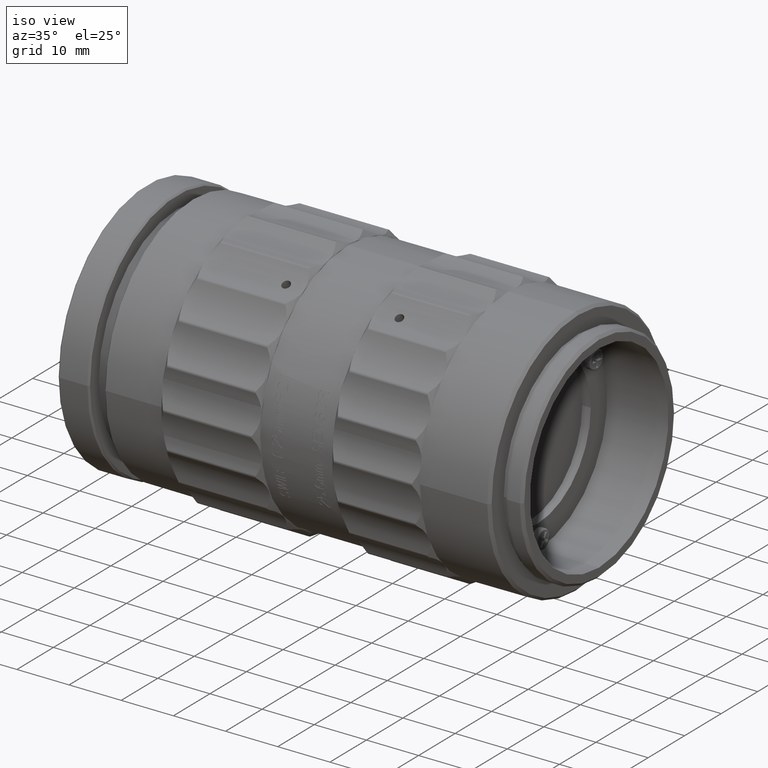
[diagram: clean part render]
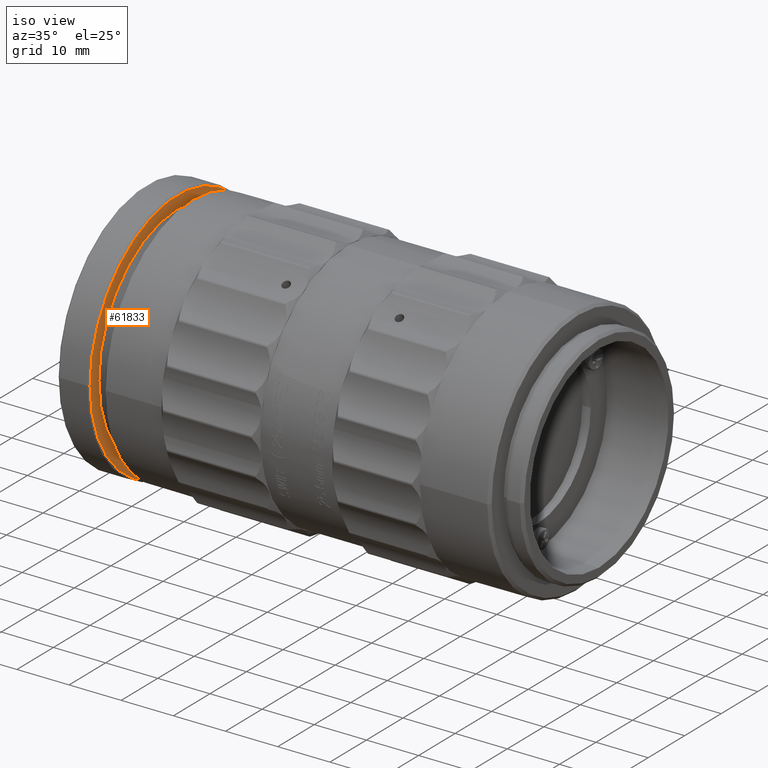
[diagram: same view with one face highlighted and labeled with its STEP entity id]
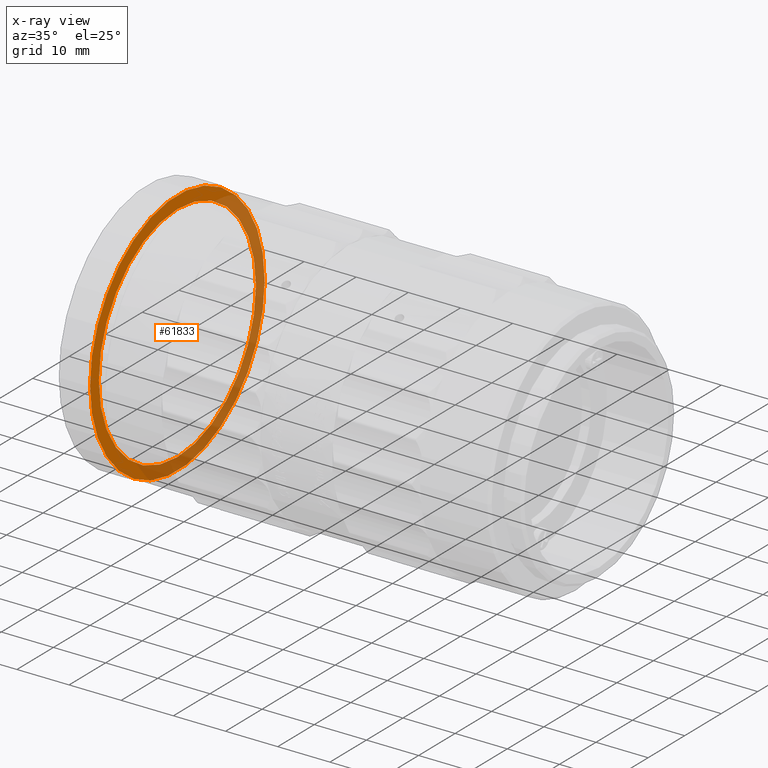
[diagram: x-ray of the same camera — body ghosted, the highlighted face saturated]
A machine part, iso view. The second image highlights one B-rep face of the part: STEP entity #61833.
The next image is the same camera in x-ray: the body ghosted, the highlighted face saturated — about 47% of this face is hidden behind the body in this view.
In plain terms, the highlighted planar face has unit normal (1, 0, 0).
Its self-contained STEP definition (entity closure, byte-faithful):
#2544 = AXIS2_PLACEMENT_3D ( 'NONE', #7820, #68424, #82119 ) ;
#4231 = EDGE_LOOP ( 'NONE', ( #49749, #42348 ) ) ;
#4686 = AXIS2_PLACEMENT_3D ( 'NONE', #72417, #17175, #51664 ) ;
#5134 = AXIS2_PLACEMENT_3D ( 'NONE', #60351, #26699, #53693 ) ;
#6637 = VERTEX_POINT ( 'NONE', #63348 ) ;
#7820 = CARTESIAN_POINT ( 'NONE',  ( 1.749999999996000088, 0.000000000000000000, 0.000000000000000000 ) ) ;
#12474 = CIRCLE ( 'NONE', #2544, 23.90000000000000213 ) ;
#13305 = CARTESIAN_POINT ( 'NONE',  ( 1.749999999996000088, -23.90000000000000213, 0.000000000000000000 ) ) ;
#13636 = CIRCLE ( 'NONE', #5134, 21.50000000000000000 ) ;
#15371 = FACE_BOUND ( 'NONE', #4231, .T. ) ;
#17175 = DIRECTION ( 'NONE',  ( -1.000000000000000000, 0.000000000000000000, 0.000000000000000000 ) ) ;
#20513 = DIRECTION ( 'NONE',  ( 1.000000000000000000, 0.000000000000000000, 0.000000000000000000 ) ) ;
#24172 = VERTEX_POINT ( 'NONE', #45019 ) ;
#24926 = EDGE_LOOP ( 'NONE', ( #42579, #28228 ) ) ;
#25698 = CARTESIAN_POINT ( 'NONE',  ( 1.750000000000000000, 0.000000000000000000, -21.50000000000000000 ) ) ;
#25816 = DIRECTION ( 'NONE',  ( 0.000000000000000000, 1.000000000000000000, 0.000000000000000000 ) ) ;
#26699 = DIRECTION ( 'NONE',  ( 1.000000000000000000, 0.000000000000000000, 0.000000000000000000 ) ) ;
#27286 = EDGE_CURVE ( 'NONE', #78167, #24172, #52724, .T. ) ;
#28228 = ORIENTED_EDGE ( 'NONE', *, *, #27286, .F. ) ;
#41015 = FACE_OUTER_BOUND ( 'NONE', #24926, .T. ) ;
#41914 = DIRECTION ( 'NONE',  ( 0.000000000000000000, 1.000000000000000000, 0.000000000000000000 ) ) ;
#42341 = PLANE ( 'NONE',  #81315 ) ;
#42348 = ORIENTED_EDGE ( 'NONE', *, *, #74335, .F. ) ;
#42579 = ORIENTED_EDGE ( 'NONE', *, *, #50878, .F. ) ;
#45019 = CARTESIAN_POINT ( 'NONE',  ( 1.749999999996000088, 23.90000000000000213, 0.000000000000000000 ) ) ;
#47688 = CARTESIAN_POINT ( 'NONE',  ( 1.750000000000000000, 24.85599999999999810, 24.85599999999999810 ) ) ;
#49749 = ORIENTED_EDGE ( 'NONE', *, *, #50099, .F. ) ;
#50099 = EDGE_CURVE ( 'NONE', #73257, #6637, #67485, .T. ) ;
#50878 = EDGE_CURVE ( 'NONE', #24172, #78167, #12474, .T. ) ;
#51664 = DIRECTION ( 'NONE',  ( 0.000000000000000000, -1.000000000000000000, 0.000000000000000000 ) ) ;
#52724 = CIRCLE ( 'NONE', #4686, 23.90000000000000213 ) ;
#53693 = DIRECTION ( 'NONE',  ( 0.000000000000000000, 1.000000000000000000, 0.000000000000000000 ) ) ;
#54740 = DIRECTION ( 'NONE',  ( 1.000000000000000000, 0.000000000000000000, 0.000000000000000000 ) ) ;
#60351 = CARTESIAN_POINT ( 'NONE',  ( 1.750000000000000000, 0.000000000000000000, 0.000000000000000000 ) ) ;
#61833 = ADVANCED_FACE ( 'NONE', ( #15371, #41015 ), #42341, .T. ) ;
#63332 = AXIS2_PLACEMENT_3D ( 'NONE', #86419, #20513, #25816 ) ;
#63348 = CARTESIAN_POINT ( 'NONE',  ( 1.750000000000000000, 2.632990618166809630E-15, 21.50000000000000000 ) ) ;
#67485 = CIRCLE ( 'NONE', #63332, 21.50000000000000000 ) ;
#68424 = DIRECTION ( 'NONE',  ( -1.000000000000000000, 0.000000000000000000, 0.000000000000000000 ) ) ;
#72417 = CARTESIAN_POINT ( 'NONE',  ( 1.749999999996000088, 0.000000000000000000, 0.000000000000000000 ) ) ;
#73257 = VERTEX_POINT ( 'NONE', #25698 ) ;
#74335 = EDGE_CURVE ( 'NONE', #6637, #73257, #13636, .T. ) ;
#78167 = VERTEX_POINT ( 'NONE', #13305 ) ;
#81315 = AXIS2_PLACEMENT_3D ( 'NONE', #47688, #54740, #41914 ) ;
#82119 = DIRECTION ( 'NONE',  ( 0.000000000000000000, 1.000000000000000000, 0.000000000000000000 ) ) ;
#86419 = CARTESIAN_POINT ( 'NONE',  ( 1.750000000000000000, 0.000000000000000000, 0.000000000000000000 ) ) ;